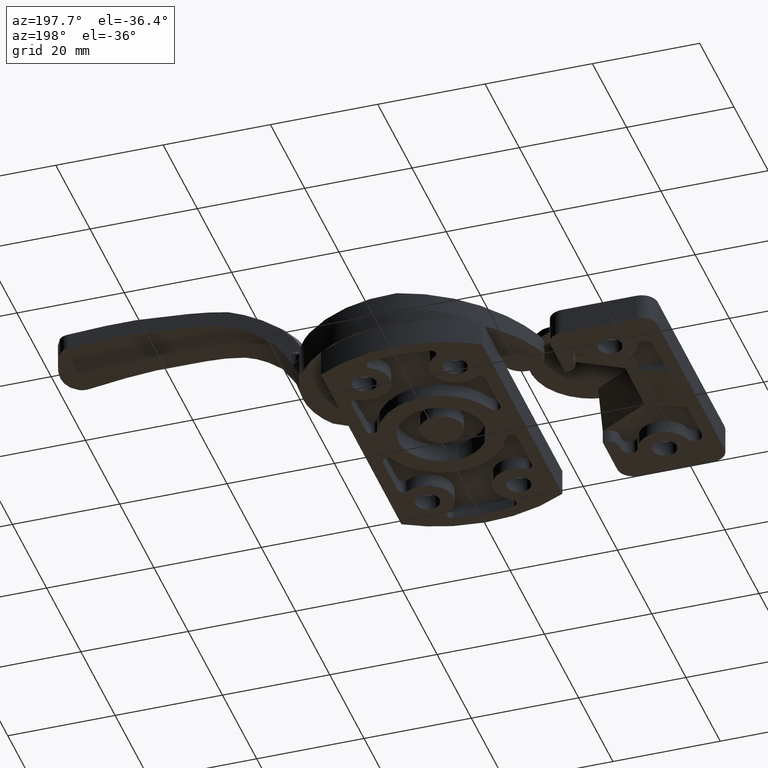
[diagram: clean part render]
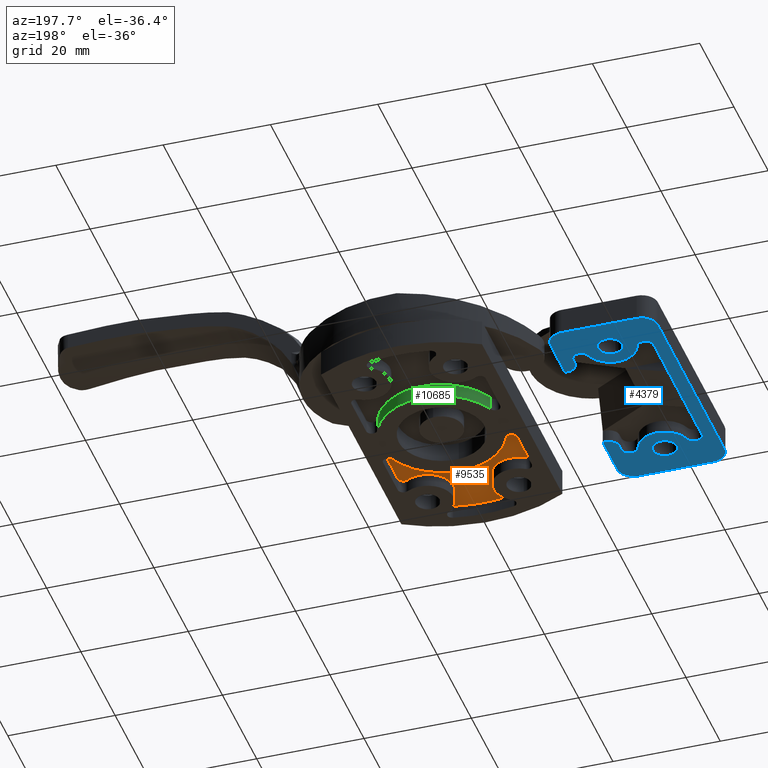
[diagram: same view with three faces highlighted in distinct colors, each labeled with its STEP entity id]
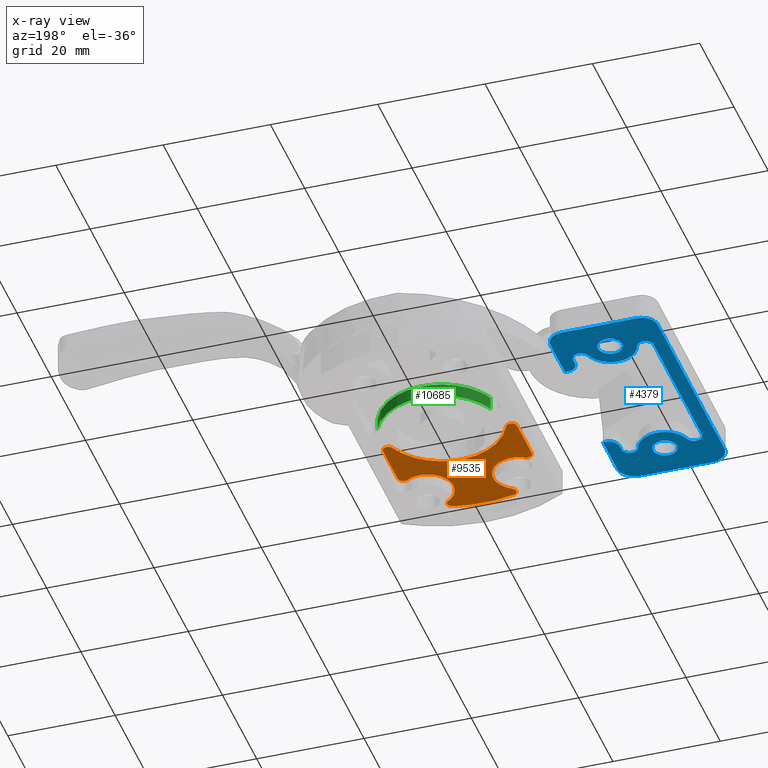
[diagram: x-ray of the same camera — body ghosted, the three highlighted faces saturated]
A machine part, auxiliary view with three faces highlighted in distinct colors.
The next image is the same camera in x-ray (body ghosted, the three faces saturated) — at least one of them is partly hidden behind the body in this view.
Their STEP definitions:

[orange] entity #9535 — the highlighted face is a freeform B-spline surface patch.
#9346=CARTESIAN_POINT('',(13.748749951545360,-2.845168949227364,2.500000000000000));
#9347=CARTESIAN_POINT('',(-13.748750622097409,-2.845168949227364,2.500000000000000));
#9348=CARTESIAN_POINT('',(13.748749951545360,-26.053987644683350,2.500000000000000));
#9349=CARTESIAN_POINT('',(-13.748750622097409,-26.053987644683350,2.500000000000000));
#9350=B_SPLINE_SURFACE_WITH_KNOTS('',1,1,((#9346,#9348),(#9347,#9349)),.UNSPECIFIED.,.F.,.F.,.U.,(2,2),(2,2),(0.0,27.497500573642782),(0.0,23.208818695455982),.UNSPECIFIED.);
#9351=CARTESIAN_POINT('',(12.500000000000201,-4.898979000000001,2.499999999999945));
#9352=VERTEX_POINT('',#9351);
#9353=CARTESIAN_POINT('',(10.580000005162720,-4.507061114601941,2.499999999999945));
#9354=VERTEX_POINT('',#9353);
#9355=CARTESIAN_POINT('',(12.500000000000201,-4.898979000000001,2.499999999999945));
#9356=CARTESIAN_POINT('',(12.500000000000000,-4.082482238427180,2.499999999999945));
#9357=CARTESIAN_POINT('',(11.699999787605631,-3.919183059531933,2.499999999999945));
#9358=CARTESIAN_POINT('',(10.899999575211256,-3.755883880636686,2.499999999999945));
#9359=CARTESIAN_POINT('',(10.580000005162720,-4.507061114601941,2.499999999999945));
#9367=(BOUNDED_CURVE()B_SPLINE_CURVE(2,(#9355,#9356,#9357,#9358,#9359),.UNSPECIFIED.,.F.,.U.)B_SPLINE_CURVE_WITH_KNOTS((3,2,3),(0.0,0.500000000000000,1.0),.UNSPECIFIED.)CURVE()GEOMETRIC_REPRESENTATION_ITEM()RATIONAL_B_SPLINE_CURVE((1.0,0.774596600691492,1.0,0.774596600691492,1.0))REPRESENTATION_ITEM(''));
#9368=EDGE_CURVE('',#9352,#9354,#9367,.T.);
#9369=ORIENTED_EDGE('',*,*,#9368,.F.);
#9370=CARTESIAN_POINT('',(12.500000000000000,-13.536131000000021,2.499999999999945));
#9371=VERTEX_POINT('',#9370);
#9372=CARTESIAN_POINT('',(12.500000000000000,-13.536131000000021,2.499999999999945));
#9373=CARTESIAN_POINT('',(12.500000000000201,-4.898979000000001,2.499999999999945));
#9374=QUASI_UNIFORM_CURVE('',1,(#9372,#9373),.UNSPECIFIED.,.F.,.U.);
#9375=EDGE_CURVE('',#9371,#9352,#9374,.T.);
#9376=ORIENTED_EDGE('',*,*,#9375,.F.);
#9377=CARTESIAN_POINT('',(10.982758626317541,-14.391970106797320,2.499999999999945));
#9378=VERTEX_POINT('',#9377);
#9379=CARTESIAN_POINT('',(10.982758626317541,-14.391970106797320,2.499999999999945));
#9380=CARTESIAN_POINT('',(11.482607168095695,-14.694062797634597,2.499999999999945));
#9381=CARTESIAN_POINT('',(11.991303584047850,-14.407119397340500,2.499999999999945));
#9382=CARTESIAN_POINT('',(12.499999999999998,-14.120175997046399,2.499999999999945));
#9383=CARTESIAN_POINT('',(12.500000000000000,-13.536131000000021,2.499999999999945));
#9391=(BOUNDED_CURVE()B_SPLINE_CURVE(2,(#9379,#9380,#9381,#9382,#9383),.UNSPECIFIED.,.F.,.U.)B_SPLINE_CURVE_WITH_KNOTS((3,2,3),(0.0,0.500000000000000,1.0),.UNSPECIFIED.)CURVE()GEOMETRIC_REPRESENTATION_ITEM()RATIONAL_B_SPLINE_CURVE((1.0,0.863511315515856,1.0,0.863511315515856,1.0))REPRESENTATION_ITEM(''));
#9392=EDGE_CURVE('',#9378,#9371,#9391,.T.);
#9393=ORIENTED_EDGE('',*,*,#9392,.F.);
#9394=CARTESIAN_POINT('',(5.976077199084000,-22.582868402338551,2.499999999999945));
#9395=VERTEX_POINT('',#9394);
#9396=CARTESIAN_POINT('',(10.982758626317541,-14.391970106797320,2.499999999999945));
#9397=CARTESIAN_POINT('',(6.895322150129048,-11.921657466771830,2.499999999999945));
#9398=CARTESIAN_POINT('',(4.404499164812677,-15.996627692695640,2.499999999999945));
#9399=CARTESIAN_POINT('',(1.913676179496306,-20.071597918619453,2.499999999999945));
#9400=CARTESIAN_POINT('',(5.976077199084000,-22.582868402338551,2.499999999999945));
#9408=(BOUNDED_CURVE()B_SPLINE_CURVE(2,(#9396,#9397,#9398,#9399,#9400),.UNSPECIFIED.,.F.,.U.)B_SPLINE_CURVE_WITH_KNOTS((3,2,3),(0.0,0.500000000000000,1.0),.UNSPECIFIED.)CURVE()GEOMETRIC_REPRESENTATION_ITEM()RATIONAL_B_SPLINE_CURVE((1.0,0.708881348128291,1.0,0.708881348128291,1.0))REPRESENTATION_ITEM(''));
#9409=EDGE_CURVE('',#9378,#9395,#9408,.T.);
#9410=ORIENTED_EDGE('',*,*,#9409,.T.);
#9411=CARTESIAN_POINT('',(5.655930628949551,-24.412087409201650,2.499999999999945));
#9412=VERTEX_POINT('',#9411);
#9413=CARTESIAN_POINT('',(5.655930628949551,-24.412087409201650,2.499999999999945));
#9414=CARTESIAN_POINT('',(6.318556643376409,-24.272827381836365,2.499999999999945));
#9415=CARTESIAN_POINT('',(6.435287422634611,-23.605863728110940,2.499999999999945));
#9416=CARTESIAN_POINT('',(6.552018201892813,-22.938900074385526,2.499999999999945));
#9417=CARTESIAN_POINT('',(5.976077199084008,-22.582868402338541,2.499999999999945));
#9425=(BOUNDED_CURVE()B_SPLINE_CURVE(2,(#9413,#9414,#9415,#9416,#9417),.UNSPECIFIED.,.F.,.U.)B_SPLINE_CURVE_WITH_KNOTS((3,2,3),(0.0,0.500000000000000,1.0),.UNSPECIFIED.)CURVE()GEOMETRIC_REPRESENTATION_ITEM()RATIONAL_B_SPLINE_CURVE((1.0,0.828040840483489,1.0,0.828040840483489,1.0))REPRESENTATION_ITEM(''));
#9426=EDGE_CURVE('',#9412,#9395,#9425,.T.);
#9427=ORIENTED_EDGE('',*,*,#9426,.F.);
#9428=CARTESIAN_POINT('',(-5.655930204688779,-24.412087360334599,2.499999999999945));
#9429=VERTEX_POINT('',#9428);
#9430=CARTESIAN_POINT('',(-5.655930204688779,-24.412087360334599,2.499999999999945));
#9431=CARTESIAN_POINT('',(0.000000206995355,-25.600755891966788,2.499999999999945));
#9432=CARTESIAN_POINT('',(5.655930628949549,-24.412087409201661,2.499999999999945));
#9440=(BOUNDED_CURVE()B_SPLINE_CURVE(2,(#9430,#9431,#9432),.UNSPECIFIED.,.F.,.U.)CURVE()GEOMETRIC_REPRESENTATION_ITEM()QUASI_UNIFORM_CURVE()RATIONAL_B_SPLINE_CURVE((1.0,0.978621361849610,1.0))REPRESENTATION_ITEM(''));
#9441=EDGE_CURVE('',#9429,#9412,#9440,.T.);
#9442=ORIENTED_EDGE('',*,*,#9441,.F.);
#9443=CARTESIAN_POINT('',(-5.976077444396740,-22.582868468775001,2.499999999999945));
#9444=VERTEX_POINT('',#9443);
#9445=CARTESIAN_POINT('',(-5.976077444396740,-22.582868468775001,2.499999999999945));
#9446=CARTESIAN_POINT('',(-6.552018372468311,-22.938900373740985,2.499999999999945));
#9447=CARTESIAN_POINT('',(-6.435287366713972,-23.605864047622259,2.499999999999945));
#9448=CARTESIAN_POINT('',(-6.318556360959633,-24.272827721503550,2.499999999999945));
#9449=CARTESIAN_POINT('',(-5.655930204688781,-24.412087360334610,2.499999999999945));
#9457=(BOUNDED_CURVE()B_SPLINE_CURVE(2,(#9445,#9446,#9447,#9448,#9449),.UNSPECIFIED.,.F.,.U.)B_SPLINE_CURVE_WITH_KNOTS((3,2,3),(0.0,0.500000000000000,1.0),.UNSPECIFIED.)CURVE()GEOMETRIC_REPRESENTATION_ITEM()RATIONAL_B_SPLINE_CURVE((1.0,0.828040817840397,1.0,0.828040817840397,1.0))REPRESENTATION_ITEM(''));
#9458=EDGE_CURVE('',#9444,#9429,#9457,.T.);
#9459=ORIENTED_EDGE('',*,*,#9458,.F.);
#9460=CARTESIAN_POINT('',(-10.982758619517220,-14.391970561083919,2.499999999999945));
#9461=VERTEX_POINT('',#9460);
#9462=CARTESIAN_POINT('',(-5.976077444396744,-22.582868468775001,2.499999999999945));
#9463=CARTESIAN_POINT('',(-1.913676059197915,-20.071598129200844,2.499999999999946));
#9464=CARTESIAN_POINT('',(-4.404499161046998,-15.996627698855949,2.499999999999945));
#9465=CARTESIAN_POINT('',(-6.895322262896080,-11.921657268511064,2.499999999999946));
#9466=CARTESIAN_POINT('',(-10.982758619517220,-14.391970561083919,2.499999999999945));
#9474=(BOUNDED_CURVE()B_SPLINE_CURVE(2,(#9462,#9463,#9464,#9465,#9466),.UNSPECIFIED.,.F.,.U.)B_SPLINE_CURVE_WITH_KNOTS((3,2,3),(0.0,0.500000000000000,1.0),.UNSPECIFIED.)CURVE()GEOMETRIC_REPRESENTATION_ITEM()RATIONAL_B_SPLINE_CURVE((1.0,0.708881330761357,1.0,0.708881330761357,1.0))REPRESENTATION_ITEM(''));
#9475=EDGE_CURVE('',#9444,#9461,#9474,.T.);
#9476=ORIENTED_EDGE('',*,*,#9475,.T.);
#9477=CARTESIAN_POINT('',(-12.500000000000000,-13.536131000000021,2.499999999999945));
#9478=VERTEX_POINT('',#9477);
#9479=CARTESIAN_POINT('',(-12.500000000000000,-13.536131000000021,2.499999999999945));
#9480=CARTESIAN_POINT('',(-12.499999999999995,-14.120175920215662,2.499999999999944));
#9481=CARTESIAN_POINT('',(-11.991303683843929,-14.407119341047929,2.499999999999945));
#9482=CARTESIAN_POINT('',(-11.482607367687852,-14.694062761880197,2.499999999999944));
#9483=CARTESIAN_POINT('',(-10.982758619517220,-14.391970561083911,2.499999999999945));
#9491=(BOUNDED_CURVE()B_SPLINE_CURVE(2,(#9479,#9480,#9481,#9482,#9483),.UNSPECIFIED.,.F.,.U.)B_SPLINE_CURVE_WITH_KNOTS((3,2,3),(0.0,0.500000000000000,1.0),.UNSPECIFIED.)CURVE()GEOMETRIC_REPRESENTATION_ITEM()RATIONAL_B_SPLINE_CURVE((1.0,0.863511344408377,1.0,0.863511344408377,1.0))REPRESENTATION_ITEM(''));
#9492=EDGE_CURVE('',#9478,#9461,#9491,.T.);
#9493=ORIENTED_EDGE('',*,*,#9492,.F.);
#9494=CARTESIAN_POINT('',(-12.500000000000000,-4.898979000000001,2.499999999999945));
#9495=VERTEX_POINT('',#9494);
#9496=CARTESIAN_POINT('',(-12.500000000000000,-4.898979000000001,2.499999999999945));
#9497=CARTESIAN_POINT('',(-12.500000000000000,-13.536131000000021,2.499999999999945));
#9498=QUASI_UNIFORM_CURVE('',1,(#9496,#9497),.UNSPECIFIED.,.F.,.U.);
#9499=EDGE_CURVE('',#9495,#9478,#9498,.T.);
#9500=ORIENTED_EDGE('',*,*,#9499,.F.);
#9501=CARTESIAN_POINT('',(-10.580000005162740,-4.507061114601900,2.499999999999945));
#9502=VERTEX_POINT('',#9501);
#9503=CARTESIAN_POINT('',(-10.580000005162740,-4.507061114601900,2.499999999999945));
#9504=CARTESIAN_POINT('',(-10.899999575211300,-3.755883880636677,2.499999999999945));
#9505=CARTESIAN_POINT('',(-11.699999787605650,-3.919183059531938,2.499999999999945));
#9506=CARTESIAN_POINT('',(-12.500000000000000,-4.082482238427200,2.499999999999945));
#9507=CARTESIAN_POINT('',(-12.500000000000000,-4.898979000000001,2.499999999999945));
#9515=(BOUNDED_CURVE()B_SPLINE_CURVE(2,(#9503,#9504,#9505,#9506,#9507),.UNSPECIFIED.,.F.,.U.)B_SPLINE_CURVE_WITH_KNOTS((3,2,3),(0.0,0.500000000000000,1.0),.UNSPECIFIED.)CURVE()GEOMETRIC_REPRESENTATION_ITEM()RATIONAL_B_SPLINE_CURVE((1.0,0.774596600691499,1.0,0.774596600691499,1.0))REPRESENTATION_ITEM(''));
#9516=EDGE_CURVE('',#9502,#9495,#9515,.T.);
#9517=ORIENTED_EDGE('',*,*,#9516,.F.);
#9518=CARTESIAN_POINT('',(-10.580000005162740,-4.507061114601898,2.499999999999945));
#9519=CARTESIAN_POINT('',(-7.601020523897553,-11.500000000000000,2.499999999999945));
#9520=CARTESIAN_POINT('',(0.0,-11.500000000000000,2.499999999999945));
#9521=CARTESIAN_POINT('',(7.601020523897517,-11.500000000000000,2.499999999999945));
#9522=CARTESIAN_POINT('',(10.580000005162720,-4.507061114601942,2.499999999999945));
#9530=(BOUNDED_CURVE()B_SPLINE_CURVE(2,(#9518,#9519,#9520,#9521,#9522),.UNSPECIFIED.,.F.,.U.)B_SPLINE_CURVE_WITH_KNOTS((3,2,3),(0.0,0.500000000000000,1.0),.UNSPECIFIED.)CURVE()GEOMETRIC_REPRESENTATION_ITEM()RATIONAL_B_SPLINE_CURVE((1.0,0.834241678949053,1.0,0.834241678949053,1.0))REPRESENTATION_ITEM(''));
#9531=EDGE_CURVE('',#9502,#9354,#9530,.T.);
#9532=ORIENTED_EDGE('',*,*,#9531,.T.);
#9533=EDGE_LOOP('',(#9369,#9376,#9393,#9410,#9427,#9442,#9459,#9476,#9493,#9500,#9517,#9532));
#9534=FACE_OUTER_BOUND('',#9533,.T.);
#9535=ADVANCED_FACE('',(#9534),#9350,.F.);

[blue] entity #4379 — the highlighted face is a freeform B-spline surface patch.
#1293=CARTESIAN_POINT('',(-36.756726495703290,13.764694314773950,-5.177501E-017));
#1294=VERTEX_POINT('',#1293);
#1300=CARTESIAN_POINT('',(-38.750000000000000,16.0,0.0));
#1301=VERTEX_POINT('',#1300);
#1302=CARTESIAN_POINT('',(-36.756726495703290,13.764694314773948,-5.177501E-017));
#1303=CARTESIAN_POINT('',(-38.749999999999993,13.993623237200172,0.0));
#1304=CARTESIAN_POINT('',(-38.750000000000000,16.0,0.0));
#1312=(BOUNDED_CURVE()B_SPLINE_CURVE(2,(#1302,#1303,#1304),.UNSPECIFIED.,.F.,.U.)B_SPLINE_CURVE_WITH_KNOTS((3,3),(0.269767755882285,0.500000000000000),.UNSPECIFIED.)CURVE()GEOMETRIC_REPRESENTATION_ITEM()RATIONAL_B_SPLINE_CURVE((0.957343736449467,0.730266147782872,1.0))REPRESENTATION_ITEM(''));
#1313=EDGE_CURVE('',#1294,#1301,#1312,.T.);
#1315=CARTESIAN_POINT('',(-36.637359213968828,18.245803296448258,-5.551115E-017));
#1316=VERTEX_POINT('',#1315);
#1317=CARTESIAN_POINT('',(-38.750000000000000,16.0,0.0));
#1318=CARTESIAN_POINT('',(-38.750000000000000,18.116588650508735,0.0));
#1319=CARTESIAN_POINT('',(-36.637359213968836,18.245803296448262,-5.551115E-017));
#1327=(BOUNDED_CURVE()B_SPLINE_CURVE(2,(#1317,#1318,#1319),.UNSPECIFIED.,.F.,.U.)B_SPLINE_CURVE_WITH_KNOTS((3,3),(0.500000000000000,0.739332962239602),.UNSPECIFIED.)CURVE()GEOMETRIC_REPRESENTATION_ITEM()RATIONAL_B_SPLINE_CURVE((1.0,0.719603993285937,0.976072041668131))REPRESENTATION_ITEM(''));
#1328=EDGE_CURVE('',#1301,#1316,#1327,.T.);
#1427=CARTESIAN_POINT('',(-34.249999999999993,16.0,0.0));
#1428=VERTEX_POINT('',#1427);
#1429=CARTESIAN_POINT('',(-36.637359213968828,18.245803296448251,-5.551115E-017));
#1430=CARTESIAN_POINT('',(-36.568743717437258,18.250000000000004,0.0));
#1431=CARTESIAN_POINT('',(-36.500000000000000,18.250000000000000,0.0));
#1432=CARTESIAN_POINT('',(-34.250000000000000,18.250000000000000,0.0));
#1433=CARTESIAN_POINT('',(-34.249999999999993,16.0,0.0));
#1441=(BOUNDED_CURVE()B_SPLINE_CURVE(2,(#1429,#1430,#1431,#1432,#1433),.UNSPECIFIED.,.F.,.U.)B_SPLINE_CURVE_WITH_KNOTS((3,2,3),(0.739332962239603,0.750000000000000,1.0),.UNSPECIFIED.)CURVE()GEOMETRIC_REPRESENTATION_ITEM()RATIONAL_B_SPLINE_CURVE((0.976072041668131,0.987502787900610,1.0,0.707106781186547,1.0))REPRESENTATION_ITEM(''));
#1442=EDGE_CURVE('',#1316,#1428,#1441,.T.);
#1444=CARTESIAN_POINT('',(-34.249999999999993,16.0,0.0));
#1445=CARTESIAN_POINT('',(-34.250000000000000,13.750000000000000,0.0));
#1446=CARTESIAN_POINT('',(-36.500000000000000,13.750000000000000,0.0));
#1447=CARTESIAN_POINT('',(-36.628783778844749,13.750000000000000,0.0));
#1448=CARTESIAN_POINT('',(-36.756726495703290,13.764694314773948,-5.177501E-017));
#1456=(BOUNDED_CURVE()B_SPLINE_CURVE(2,(#1444,#1445,#1446,#1447,#1448),.UNSPECIFIED.,.F.,.U.)B_SPLINE_CURVE_WITH_KNOTS((3,2,3),(0.0,0.250000000000000,0.269767755882285),.UNSPECIFIED.)CURVE()GEOMETRIC_REPRESENTATION_ITEM()RATIONAL_B_SPLINE_CURVE((1.0,0.707106781186547,1.0,0.976840633403676,0.957343736449467))REPRESENTATION_ITEM(''));
#1457=EDGE_CURVE('',#1428,#1294,#1456,.T.);
#1631=CARTESIAN_POINT('',(-38.396840109940747,-14.789835714739549,-4.771552E-017));
#1632=VERTEX_POINT('',#1631);
#1638=CARTESIAN_POINT('',(-34.249999999999993,-16.0,0.0));
#1639=VERTEX_POINT('',#1638);
#1640=CARTESIAN_POINT('',(-34.249999999999993,-16.0,0.0));
#1641=CARTESIAN_POINT('',(-34.250000000000000,-13.750000000000000,0.0));
#1642=CARTESIAN_POINT('',(-36.500000000000000,-13.750000000000000,0.0));
#1643=CARTESIAN_POINT('',(-37.733435726023082,-13.750000000000000,0.0));
#1644=CARTESIAN_POINT('',(-38.396840109940754,-14.789835714739546,-4.771552E-017));
#1652=(BOUNDED_CURVE()B_SPLINE_CURVE(2,(#1640,#1641,#1642,#1643,#1644),.UNSPECIFIED.,.F.,.U.)B_SPLINE_CURVE_WITH_KNOTS((3,2,3),(0.0,0.250000000000000,0.407950112626525),.UNSPECIFIED.)CURVE()GEOMETRIC_REPRESENTATION_ITEM()RATIONAL_B_SPLINE_CURVE((1.0,0.707106781186547,1.0,0.814949932403479,0.863729296954290))REPRESENTATION_ITEM(''));
#1653=EDGE_CURVE('',#1639,#1632,#1652,.T.);
#1655=CARTESIAN_POINT('',(-36.676532965421814,-18.243064000896851,-5.551115E-017));
#1656=VERTEX_POINT('',#1655);
#1657=CARTESIAN_POINT('',(-36.676532965421806,-18.243064000896855,-5.551115E-017));
#1658=CARTESIAN_POINT('',(-36.588402740801584,-18.250000000000004,0.0));
#1659=CARTESIAN_POINT('',(-36.500000000000000,-18.250000000000000,0.0));
#1660=CARTESIAN_POINT('',(-34.250000000000000,-18.250000000000000,0.0));
#1661=CARTESIAN_POINT('',(-34.249999999999993,-16.0,0.0));
#1669=(BOUNDED_CURVE()B_SPLINE_CURVE(2,(#1657,#1658,#1659,#1660,#1661),.UNSPECIFIED.,.F.,.U.)B_SPLINE_CURVE_WITH_KNOTS((3,2,3),(0.736331300627545,0.750000000000000,1.0),.UNSPECIFIED.)CURVE()GEOMETRIC_REPRESENTATION_ITEM()RATIONAL_B_SPLINE_CURVE((0.969723356160917,0.983986122575233,1.0,0.707106781186547,1.0))REPRESENTATION_ITEM(''));
#1670=EDGE_CURVE('',#1656,#1639,#1669,.T.);
#1774=CARTESIAN_POINT('',(-38.750000000000000,-16.0,0.0));
#1775=VERTEX_POINT('',#1774);
#1776=CARTESIAN_POINT('',(-38.750000000000000,-16.0,0.0));
#1777=CARTESIAN_POINT('',(-38.750000000000000,-18.079878606167430,0.0));
#1778=CARTESIAN_POINT('',(-36.676532965421814,-18.243064000896855,-5.551115E-017));
#1786=(BOUNDED_CURVE()B_SPLINE_CURVE(2,(#1776,#1777,#1778),.UNSPECIFIED.,.F.,.U.)B_SPLINE_CURVE_WITH_KNOTS((3,3),(0.500000000000000,0.736331300627546),.UNSPECIFIED.)CURVE()GEOMETRIC_REPRESENTATION_ITEM()RATIONAL_B_SPLINE_CURVE((1.0,0.723120658611314,0.969723356160920))REPRESENTATION_ITEM(''));
#1787=EDGE_CURVE('',#1775,#1656,#1786,.T.);
#1789=CARTESIAN_POINT('',(-38.396840109940754,-14.789835714739546,-4.771552E-017));
#1790=CARTESIAN_POINT('',(-38.750000000000000,-15.343386875388301,0.0));
#1791=CARTESIAN_POINT('',(-38.750000000000000,-16.0,0.0));
#1799=(BOUNDED_CURVE()B_SPLINE_CURVE(2,(#1789,#1790,#1791),.UNSPECIFIED.,.F.,.U.)B_SPLINE_CURVE_WITH_KNOTS((3,3),(0.407950112626524,0.500000000000000),.UNSPECIFIED.)CURVE()GEOMETRIC_REPRESENTATION_ITEM()RATIONAL_B_SPLINE_CURVE((0.863729296954290,0.892156848783068,1.0))REPRESENTATION_ITEM(''));
#1800=EDGE_CURVE('',#1632,#1775,#1799,.T.);
#1939=CARTESIAN_POINT('',(-44.0,-5.609442705712500,0.0));
#1940=VERTEX_POINT('',#1939);
#1968=CARTESIAN_POINT('',(-44.0,5.609442749494390,0.0));
#1969=VERTEX_POINT('',#1968);
#1998=CARTESIAN_POINT('',(-44.0,5.609442749494390,0.0));
#1999=CARTESIAN_POINT('',(-44.0,-5.609442705712500,0.0));
#2000=QUASI_UNIFORM_CURVE('',1,(#1998,#1999),.UNSPECIFIED.,.F.,.U.);
#2001=EDGE_CURVE('',#1969,#1940,#2000,.T.);
#3492=CARTESIAN_POINT('',(-27.0,11.017396673876320,0.0));
#3493=VERTEX_POINT('',#3492);
#3499=CARTESIAN_POINT('',(-26.500000000000000,11.017396673876320,0.0));
#3500=VERTEX_POINT('',#3499);
#3501=CARTESIAN_POINT('',(-27.0,11.017396673876320,0.0));
#3502=CARTESIAN_POINT('',(-26.500000000000000,11.017396673876320,0.0));
#3503=QUASI_UNIFORM_CURVE('',1,(#3501,#3502),.UNSPECIFIED.,.F.,.U.);
#3504=EDGE_CURVE('',#3493,#3500,#3503,.T.);
#3528=CARTESIAN_POINT('',(-29.0,13.017396673876320,0.0));
#3529=VERTEX_POINT('',#3528);
#3530=CARTESIAN_POINT('',(-29.0,13.017396673876320,0.0));
#3531=CARTESIAN_POINT('',(-29.0,11.017396673876320,0.0));
#3532=CARTESIAN_POINT('',(-27.0,11.017396673876320,0.0));
#3540=(BOUNDED_CURVE()B_SPLINE_CURVE(2,(#3530,#3531,#3532),.UNSPECIFIED.,.F.,.U.)CURVE()GEOMETRIC_REPRESENTATION_ITEM()QUASI_UNIFORM_CURVE()RATIONAL_B_SPLINE_CURVE((1.0,0.707106781186548,1.0))REPRESENTATION_ITEM(''));
#3541=EDGE_CURVE('',#3529,#3493,#3540,.T.);
#3572=CARTESIAN_POINT('',(-29.0,14.079063000000000,0.0));
#3573=VERTEX_POINT('',#3572);
#3574=CARTESIAN_POINT('',(-29.0,14.079063000000000,0.0));
#3575=CARTESIAN_POINT('',(-29.0,13.017396673876320,0.0));
#3576=QUASI_UNIFORM_CURVE('',1,(#3574,#3575),.UNSPECIFIED.,.F.,.U.);
#3577=EDGE_CURVE('',#3573,#3529,#3576,.T.);
#3613=CARTESIAN_POINT('',(-31.928571424434850,14.536428758650800,0.0));
#3614=VERTEX_POINT('',#3613);
#3615=CARTESIAN_POINT('',(-29.0,14.079063000000000,0.0));
#3616=CARTESIAN_POINT('',(-28.999999999999989,15.362984945224540,0.0));
#3617=CARTESIAN_POINT('',(-30.268545095964761,15.561098298971670,0.0));
#3618=CARTESIAN_POINT('',(-31.537090191929519,15.759211652718790,0.0));
#3619=CARTESIAN_POINT('',(-31.928571424434850,14.536428758650800,0.0));
#3627=(BOUNDED_CURVE()B_SPLINE_CURVE(2,(#3615,#3616,#3617,#3618,#3619),.UNSPECIFIED.,.F.,.U.)B_SPLINE_CURVE_WITH_KNOTS((3,2,3),(0.0,0.500000000000000,1.0),.UNSPECIFIED.)CURVE()GEOMETRIC_REPRESENTATION_ITEM()RATIONAL_B_SPLINE_CURVE((1.0,0.759704965548083,1.0,0.759704965548083,1.0))REPRESENTATION_ITEM(''));
#3628=EDGE_CURVE('',#3573,#3614,#3627,.T.);
#3674=CARTESIAN_POINT('',(-41.071428570135851,14.536429012921619,0.0));
#3675=VERTEX_POINT('',#3674);
#3676=CARTESIAN_POINT('',(-41.071428570135851,14.536429012921619,0.0));
#3677=CARTESIAN_POINT('',(-40.003250405821404,11.200000087766364,0.0));
#3678=CARTESIAN_POINT('',(-36.500000120253617,11.199999999999999,0.0));
#3679=CARTESIAN_POINT('',(-32.996749834685829,11.199999912233642,0.0));
#3680=CARTESIAN_POINT('',(-31.928571424434850,14.536428758650800,0.0));
#3688=(BOUNDED_CURVE()B_SPLINE_CURVE(2,(#3676,#3677,#3678,#3679,#3680),.UNSPECIFIED.,.F.,.U.)B_SPLINE_CURVE_WITH_KNOTS((3,2,3),(0.0,0.500000000000000,1.0),.UNSPECIFIED.)CURVE()GEOMETRIC_REPRESENTATION_ITEM()RATIONAL_B_SPLINE_CURVE((1.0,0.807747067905929,1.0,0.807747067905929,1.0))REPRESENTATION_ITEM(''));
#3689=EDGE_CURVE('',#3675,#3614,#3688,.T.);
#3735=CARTESIAN_POINT('',(-44.0,14.079063000000000,0.0));
#3736=VERTEX_POINT('',#3735);
#3737=CARTESIAN_POINT('',(-41.071428570135829,14.536429012921630,0.0));
#3738=CARTESIAN_POINT('',(-41.462910045697306,15.759211719786252,0.0));
#3739=CARTESIAN_POINT('',(-42.731455022848657,15.561098280416131,0.0));
#3740=CARTESIAN_POINT('',(-44.000000000000021,15.362984841046007,0.0));
#3741=CARTESIAN_POINT('',(-44.000000000000007,14.079063000000000,0.0));
#3749=(BOUNDED_CURVE()B_SPLINE_CURVE(2,(#3737,#3738,#3739,#3740,#3741),.UNSPECIFIED.,.F.,.U.)B_SPLINE_CURVE_WITH_KNOTS((3,2,3),(0.0,0.500000000000000,1.0),.UNSPECIFIED.)CURVE()GEOMETRIC_REPRESENTATION_ITEM()RATIONAL_B_SPLINE_CURVE((1.0,0.759704991613773,1.0,0.759704991613773,1.0))REPRESENTATION_ITEM(''));
#3750=EDGE_CURVE('',#3675,#3736,#3749,.T.);
#3785=CARTESIAN_POINT('',(-44.0,-14.079063000000000,0.0));
#3786=VERTEX_POINT('',#3785);
#3792=CARTESIAN_POINT('',(-44.0,-14.079063000000000,0.0));
#3793=CARTESIAN_POINT('',(-44.0,-5.609442705712500,0.0));
#3794=QUASI_UNIFORM_CURVE('',1,(#3792,#3793),.UNSPECIFIED.,.F.,.U.);
#3795=EDGE_CURVE('',#3786,#1940,#3794,.T.);
#3818=CARTESIAN_POINT('',(-41.071428575565548,-14.536428758650780,0.0));
#3819=VERTEX_POINT('',#3818);
#3820=CARTESIAN_POINT('',(-44.000000000000007,-14.079063000000000,0.0));
#3821=CARTESIAN_POINT('',(-44.000000000000014,-15.362984945224500,0.0));
#3822=CARTESIAN_POINT('',(-42.731454904035303,-15.561098298971659,0.0));
#3823=CARTESIAN_POINT('',(-41.462909808070592,-15.759211652718824,0.0));
#3824=CARTESIAN_POINT('',(-41.071428575565548,-14.536428758650780,0.0));
#3832=(BOUNDED_CURVE()B_SPLINE_CURVE(2,(#3820,#3821,#3822,#3823,#3824),.UNSPECIFIED.,.F.,.U.)B_SPLINE_CURVE_WITH_KNOTS((3,2,3),(0.0,0.500000000000000,1.0),.UNSPECIFIED.)CURVE()GEOMETRIC_REPRESENTATION_ITEM()RATIONAL_B_SPLINE_CURVE((1.0,0.759704965548094,1.0,0.759704965548094,1.0))REPRESENTATION_ITEM(''));
#3833=EDGE_CURVE('',#3786,#3819,#3832,.T.);
#3863=CARTESIAN_POINT('',(-31.928571429864409,-14.536429012921619,0.0));
#3864=VERTEX_POINT('',#3863);
#3865=CARTESIAN_POINT('',(-31.928571429864409,-14.536429012921619,0.0));
#3866=CARTESIAN_POINT('',(-32.996749594178674,-11.200000087766298,0.0));
#3867=CARTESIAN_POINT('',(-36.499999879746468,-11.199999999999999,0.0));
#3868=CARTESIAN_POINT('',(-40.003250165314256,-11.199999912233709,0.0));
#3869=CARTESIAN_POINT('',(-41.071428575565548,-14.536428758650780,0.0));
#3877=(BOUNDED_CURVE()B_SPLINE_CURVE(2,(#3865,#3866,#3867,#3868,#3869),.UNSPECIFIED.,.F.,.U.)B_SPLINE_CURVE_WITH_KNOTS((3,2,3),(0.0,0.500000000000000,1.0),.UNSPECIFIED.)CURVE()GEOMETRIC_REPRESENTATION_ITEM()RATIONAL_B_SPLINE_CURVE((1.0,0.807747067905928,1.0,0.807747067905928,1.0))REPRESENTATION_ITEM(''));
#3878=EDGE_CURVE('',#3864,#3819,#3877,.T.);
#3908=CARTESIAN_POINT('',(-29.0,-14.079063000000000,0.0));
#3909=VERTEX_POINT('',#3908);
#3910=CARTESIAN_POINT('',(-31.928571429864409,-14.536429012921619,0.0));
#3911=CARTESIAN_POINT('',(-31.537089954302779,-15.759211719786242,0.0));
#3912=CARTESIAN_POINT('',(-30.268544977151389,-15.561098280416140,0.0));
#3913=CARTESIAN_POINT('',(-29.0,-15.362984841046044,0.0));
#3914=CARTESIAN_POINT('',(-29.0,-14.079063000000000,0.0));
#3922=(BOUNDED_CURVE()B_SPLINE_CURVE(2,(#3910,#3911,#3912,#3913,#3914),.UNSPECIFIED.,.F.,.U.)B_SPLINE_CURVE_WITH_KNOTS((3,2,3),(0.0,0.500000000000000,1.0),.UNSPECIFIED.)CURVE()GEOMETRIC_REPRESENTATION_ITEM()RATIONAL_B_SPLINE_CURVE((1.0,0.759704991613765,1.0,0.759704991613765,1.0))REPRESENTATION_ITEM(''));
#3923=EDGE_CURVE('',#3864,#3909,#3922,.T.);
#3940=CARTESIAN_POINT('',(-29.0,-13.017396674964640,0.0));
#3941=VERTEX_POINT('',#3940);
#3942=CARTESIAN_POINT('',(-29.0,-13.017396674964640,0.0));
#3943=CARTESIAN_POINT('',(-29.0,-14.079063000000000,0.0));
#3944=QUASI_UNIFORM_CURVE('',1,(#3942,#3943),.UNSPECIFIED.,.F.,.U.);
#3945=EDGE_CURVE('',#3941,#3909,#3944,.T.);
#3971=CARTESIAN_POINT('',(-27.0,-11.017396674964640,0.0));
#3972=VERTEX_POINT('',#3971);
#3973=CARTESIAN_POINT('',(-27.0,-11.017396674964640,0.0));
#3974=CARTESIAN_POINT('',(-29.0,-11.017396674964640,0.0));
#3975=CARTESIAN_POINT('',(-29.0,-13.017396674964640,0.0));
#3983=(BOUNDED_CURVE()B_SPLINE_CURVE(2,(#3973,#3974,#3975),.UNSPECIFIED.,.F.,.U.)CURVE()GEOMETRIC_REPRESENTATION_ITEM()QUASI_UNIFORM_CURVE()RATIONAL_B_SPLINE_CURVE((1.0,0.707106781186548,1.0))REPRESENTATION_ITEM(''));
#3984=EDGE_CURVE('',#3972,#3941,#3983,.T.);
#4002=CARTESIAN_POINT('',(-26.500000000000000,-11.017396674964640,0.0));
#4003=VERTEX_POINT('',#4002);
#4009=CARTESIAN_POINT('',(-26.500000000000000,-11.017396674964640,0.0));
#4010=CARTESIAN_POINT('',(-27.0,-11.017396674964640,0.0));
#4011=QUASI_UNIFORM_CURVE('',1,(#4009,#4010),.UNSPECIFIED.,.F.,.U.);
#4012=EDGE_CURVE('',#4003,#3972,#4011,.T.);
#4051=CARTESIAN_POINT('',(-26.500000000000000,19.500000000000000,0.0));
#4052=VERTEX_POINT('',#4051);
#4058=CARTESIAN_POINT('',(-29.500000000000000,22.500000000000000,0.0));
#4059=VERTEX_POINT('',#4058);
#4060=CARTESIAN_POINT('',(-26.500000000000000,19.500000000000000,0.0));
#4061=CARTESIAN_POINT('',(-26.500000000000000,22.500000000000000,0.0));
#4062=CARTESIAN_POINT('',(-29.500000000000000,22.500000000000000,0.0));
#4070=(BOUNDED_CURVE()B_SPLINE_CURVE(2,(#4060,#4061,#4062),.UNSPECIFIED.,.F.,.U.)CURVE()GEOMETRIC_REPRESENTATION_ITEM()QUASI_UNIFORM_CURVE()RATIONAL_B_SPLINE_CURVE((1.0,0.707106781186548,1.0))REPRESENTATION_ITEM(''));
#4071=EDGE_CURVE('',#4052,#4059,#4070,.T.);
#4094=CARTESIAN_POINT('',(-43.500000000000000,22.500000000000000,0.0));
#4095=VERTEX_POINT('',#4094);
#4096=CARTESIAN_POINT('',(-43.500000000000000,22.500000000000000,0.0));
#4097=CARTESIAN_POINT('',(-29.500000000000000,22.500000000000000,0.0));
#4098=QUASI_UNIFORM_CURVE('',1,(#4096,#4097),.UNSPECIFIED.,.F.,.U.);
#4099=EDGE_CURVE('',#4095,#4059,#4098,.T.);
#4139=CARTESIAN_POINT('',(-46.500000000000000,19.500000000000000,0.0));
#4140=VERTEX_POINT('',#4139);
#4141=CARTESIAN_POINT('',(-43.500000000000000,22.500000000000000,0.0));
#4142=CARTESIAN_POINT('',(-46.500000000000000,22.500000000000000,0.0));
#4143=CARTESIAN_POINT('',(-46.500000000000000,19.500000000000000,0.0));
#4151=(BOUNDED_CURVE()B_SPLINE_CURVE(2,(#4141,#4142,#4143),.UNSPECIFIED.,.F.,.U.)CURVE()GEOMETRIC_REPRESENTATION_ITEM()QUASI_UNIFORM_CURVE()RATIONAL_B_SPLINE_CURVE((1.0,0.707106781186548,1.0))REPRESENTATION_ITEM(''));
#4152=EDGE_CURVE('',#4095,#4140,#4151,.T.);
#4175=CARTESIAN_POINT('',(-46.500000000000000,-19.500000000000000,0.0));
#4176=VERTEX_POINT('',#4175);
#4177=CARTESIAN_POINT('',(-46.500000000000000,-19.500000000000000,0.0));
#4178=CARTESIAN_POINT('',(-46.500000000000000,19.500000000000000,0.0));
#4179=QUASI_UNIFORM_CURVE('',1,(#4177,#4178),.UNSPECIFIED.,.F.,.U.);
#4180=EDGE_CURVE('',#4176,#4140,#4179,.T.);
#4220=CARTESIAN_POINT('',(-43.500000000000000,-22.500000000000000,0.0));
#4221=VERTEX_POINT('',#4220);
#4222=CARTESIAN_POINT('',(-46.500000000000000,-19.500000000000000,0.0));
#4223=CARTESIAN_POINT('',(-46.500000000000000,-22.500000000000000,0.0));
#4224=CARTESIAN_POINT('',(-43.500000000000000,-22.500000000000000,0.0));
#4232=(BOUNDED_CURVE()B_SPLINE_CURVE(2,(#4222,#4223,#4224),.UNSPECIFIED.,.F.,.U.)CURVE()GEOMETRIC_REPRESENTATION_ITEM()QUASI_UNIFORM_CURVE()RATIONAL_B_SPLINE_CURVE((1.0,0.707106781186548,1.0))REPRESENTATION_ITEM(''));
#4233=EDGE_CURVE('',#4176,#4221,#4232,.T.);
#4256=CARTESIAN_POINT('',(-29.500000000000000,-22.500000000000000,0.0));
#4257=VERTEX_POINT('',#4256);
#4258=CARTESIAN_POINT('',(-29.500000000000000,-22.500000000000000,0.0));
#4259=CARTESIAN_POINT('',(-43.500000000000000,-22.500000000000000,0.0));
#4260=QUASI_UNIFORM_CURVE('',1,(#4258,#4259),.UNSPECIFIED.,.F.,.U.);
#4261=EDGE_CURVE('',#4257,#4221,#4260,.T.);
#4301=CARTESIAN_POINT('',(-26.500000000000000,-19.500000000000000,0.0));
#4302=VERTEX_POINT('',#4301);
#4303=CARTESIAN_POINT('',(-29.500000000000000,-22.500000000000000,0.0));
#4304=CARTESIAN_POINT('',(-26.500000000000000,-22.500000000000000,0.0));
#4305=CARTESIAN_POINT('',(-26.500000000000000,-19.500000000000000,0.0));
#4313=(BOUNDED_CURVE()B_SPLINE_CURVE(2,(#4303,#4304,#4305),.UNSPECIFIED.,.F.,.U.)CURVE()GEOMETRIC_REPRESENTATION_ITEM()QUASI_UNIFORM_CURVE()RATIONAL_B_SPLINE_CURVE((1.0,0.707106781186548,1.0))REPRESENTATION_ITEM(''));
#4314=EDGE_CURVE('',#4257,#4302,#4313,.T.);
#4324=CARTESIAN_POINT('',(-25.501000038763880,24.747749912781270,0.0));
#4325=CARTESIAN_POINT('',(-47.499000497677933,24.747749912781270,0.0));
#4326=CARTESIAN_POINT('',(-25.501000038763880,-24.747751119775330,0.0));
#4327=CARTESIAN_POINT('',(-47.499000497677933,-24.747751119775330,0.0));
#4328=B_SPLINE_SURFACE_WITH_KNOTS('',1,1,((#4324,#4326),(#4325,#4327)),.UNSPECIFIED.,.F.,.F.,.U.,(2,2),(2,2),(0.0,21.998000458914049),(0.0,49.495501032556589),.UNSPECIFIED.);
#4329=CARTESIAN_POINT('',(-26.500000000000000,-11.017396674964640,0.0));
#4330=CARTESIAN_POINT('',(-26.500000000000000,-19.500000000000000,0.0));
#4331=QUASI_UNIFORM_CURVE('',1,(#4329,#4330),.UNSPECIFIED.,.F.,.U.);
#4332=EDGE_CURVE('',#4003,#4302,#4331,.T.);
#4333=ORIENTED_EDGE('',*,*,#4332,.T.);
#4334=ORIENTED_EDGE('',*,*,#4314,.F.);
#4335=ORIENTED_EDGE('',*,*,#4261,.T.);
#4336=ORIENTED_EDGE('',*,*,#4233,.F.);
#4337=ORIENTED_EDGE('',*,*,#4180,.T.);
#4338=ORIENTED_EDGE('',*,*,#4152,.F.);
#4339=ORIENTED_EDGE('',*,*,#4099,.T.);
#4340=ORIENTED_EDGE('',*,*,#4071,.F.);
#4341=CARTESIAN_POINT('',(-26.500000000000000,19.500000000000000,0.0));
#4342=CARTESIAN_POINT('',(-26.500000000000000,11.017396673876320,0.0));
#4343=QUASI_UNIFORM_CURVE('',1,(#4341,#4342),.UNSPECIFIED.,.F.,.U.);
#4344=EDGE_CURVE('',#4052,#3500,#4343,.T.);
#4345=ORIENTED_EDGE('',*,*,#4344,.T.);
#4346=ORIENTED_EDGE('',*,*,#3504,.F.);
#4347=ORIENTED_EDGE('',*,*,#3541,.F.);
#4348=ORIENTED_EDGE('',*,*,#3577,.F.);
#4349=ORIENTED_EDGE('',*,*,#3628,.T.);
#4350=ORIENTED_EDGE('',*,*,#3689,.F.);
#4351=ORIENTED_EDGE('',*,*,#3750,.T.);
#4352=CARTESIAN_POINT('',(-44.0,5.609442749494390,0.0));
#4353=CARTESIAN_POINT('',(-44.0,14.079063000000000,0.0));
#4354=QUASI_UNIFORM_CURVE('',1,(#4352,#4353),.UNSPECIFIED.,.F.,.U.);
#4355=EDGE_CURVE('',#1969,#3736,#4354,.T.);
#4356=ORIENTED_EDGE('',*,*,#4355,.F.);
#4357=ORIENTED_EDGE('',*,*,#2001,.T.);
#4358=ORIENTED_EDGE('',*,*,#3795,.F.);
#4359=ORIENTED_EDGE('',*,*,#3833,.T.);
#4360=ORIENTED_EDGE('',*,*,#3878,.F.);
#4361=ORIENTED_EDGE('',*,*,#3923,.T.);
#4362=ORIENTED_EDGE('',*,*,#3945,.F.);
#4363=ORIENTED_EDGE('',*,*,#3984,.F.);
#4364=ORIENTED_EDGE('',*,*,#4012,.F.);
#4365=EDGE_LOOP('',(#4333,#4334,#4335,#4336,#4337,#4338,#4339,#4340,#4345,#4346,#4347,#4348,#4349,#4350,#4351,#4356,#4357,#4358,#4359,#4360,#4361,#4362,#4363,#4364));
#4366=FACE_OUTER_BOUND('',#4365,.T.);
#4367=ORIENTED_EDGE('',*,*,#1787,.T.);
#4368=ORIENTED_EDGE('',*,*,#1670,.T.);
#4369=ORIENTED_EDGE('',*,*,#1653,.T.);
#4370=ORIENTED_EDGE('',*,*,#1800,.T.);
#4371=EDGE_LOOP('',(#4367,#4368,#4369,#4370));
#4372=FACE_BOUND('',#4371,.T.);
#4373=ORIENTED_EDGE('',*,*,#1328,.F.);
#4374=ORIENTED_EDGE('',*,*,#1313,.F.);
#4375=ORIENTED_EDGE('',*,*,#1457,.F.);
#4376=ORIENTED_EDGE('',*,*,#1442,.F.);
#4377=EDGE_LOOP('',(#4373,#4374,#4375,#4376));
#4378=FACE_BOUND('',#4377,.T.);
#4379=ADVANCED_FACE('',(#4366,#4372,#4378),#4328,.F.);

[green] entity #10685 — the highlighted face is a freeform B-spline surface patch.
#10021=CARTESIAN_POINT('',(10.579999999551060,4.507060642208520,2.499999999999945));
#10022=VERTEX_POINT('',#10021);
#10023=CARTESIAN_POINT('',(-10.579999999551060,4.507060642208531,2.499999999999945));
#10024=VERTEX_POINT('',#10023);
#10025=CARTESIAN_POINT('',(10.579999999551060,4.507060642208520,2.499999999999945));
#10026=CARTESIAN_POINT('',(7.601020834549830,11.500000000000000,2.499999999999945));
#10027=CARTESIAN_POINT('',(0.0,11.500000000000000,2.499999999999945));
#10028=CARTESIAN_POINT('',(-7.601020834549817,11.500000000000000,2.499999999999945));
#10029=CARTESIAN_POINT('',(-10.579999999551060,4.507060642208531,2.499999999999945));
#10037=(BOUNDED_CURVE()B_SPLINE_CURVE(2,(#10025,#10026,#10027,#10028,#10029),.UNSPECIFIED.,.F.,.U.)B_SPLINE_CURVE_WITH_KNOTS((3,2,3),(0.0,0.500000000000000,1.0),.UNSPECIFIED.)CURVE()GEOMETRIC_REPRESENTATION_ITEM()RATIONAL_B_SPLINE_CURVE((1.0,0.834241668582690,1.0,0.834241668582690,1.0))REPRESENTATION_ITEM(''));
#10038=EDGE_CURVE('',#10022,#10024,#10037,.T.);
#10224=CARTESIAN_POINT('',(10.579999999551060,4.507060642208520,0.0));
#10225=VERTEX_POINT('',#10224);
#10243=CARTESIAN_POINT('',(10.579999999551060,4.507060642208520,2.499999999999945));
#10244=CARTESIAN_POINT('',(10.579999999551060,4.507060642208520,0.0));
#10245=QUASI_UNIFORM_CURVE('',1,(#10243,#10244),.UNSPECIFIED.,.F.,.U.);
#10246=EDGE_CURVE('',#10022,#10225,#10245,.T.);
#10620=CARTESIAN_POINT('',(-10.579999999551060,4.507060642208531,0.0));
#10621=VERTEX_POINT('',#10620);
#10639=CARTESIAN_POINT('',(-10.579999999551060,4.507060642208531,2.499999999999945));
#10640=CARTESIAN_POINT('',(-10.579999999551060,4.507060642208531,0.0));
#10641=QUASI_UNIFORM_CURVE('',1,(#10639,#10640),.UNSPECIFIED.,.F.,.U.);
#10642=EDGE_CURVE('',#10024,#10621,#10641,.T.);
#10647=CARTESIAN_POINT('',(10.618928345979930,4.414562354633121,2.562499999999944));
#10648=CARTESIAN_POINT('',(10.618928345979930,4.414562354633121,-0.064062499999999));
#10649=CARTESIAN_POINT('',(7.613159826072520,11.644733314615289,2.562499999999944));
#10650=CARTESIAN_POINT('',(7.613159826072520,11.644733314615289,-0.064062499999999));
#10651=CARTESIAN_POINT('',(-0.215536104403689,11.497980004665971,2.562499999999944));
#10652=CARTESIAN_POINT('',(-0.215536104403689,11.497980004665971,-0.064062499999999));
#10653=CARTESIAN_POINT('',(-8.044232034879899,11.351226694716647,2.562499999999944));
#10654=CARTESIAN_POINT('',(-8.044232034879899,11.351226694716647,-0.064062499999999));
#10655=CARTESIAN_POINT('',(-10.776916839314589,4.013485198489923,2.562499999999944));
#10656=CARTESIAN_POINT('',(-10.776916839314589,4.013485198489923,-0.064062499999999));
#10664=(BOUNDED_SURFACE()B_SPLINE_SURFACE(1,2,((#10647,#10649,#10651,#10653,#10655),(#10648,#10650,#10652,#10654,#10656)),.UNSPECIFIED.,.F.,.F.,.U.)B_SPLINE_SURFACE_WITH_KNOTS((2,2),(3,2,3),(0.0,2.626562499999943),(0.0,14.173421637969810,28.346843275939619),.UNSPECIFIED.)GEOMETRIC_REPRESENTATION_ITEM()RATIONAL_B_SPLINE_SURFACE(((1.0,0.826589749127189,1.0,0.826589749127189,1.0),(1.0,0.826589749127189,1.0,0.826589749127189,1.0)))REPRESENTATION_ITEM('')SURFACE());
#10665=CARTESIAN_POINT('',(10.579999999551060,4.507060642208520,0.0));
#10666=CARTESIAN_POINT('',(7.601020834549830,11.500000000000000,0.0));
#10667=CARTESIAN_POINT('',(0.0,11.500000000000000,0.0));
#10668=CARTESIAN_POINT('',(-7.601020834549817,11.500000000000000,0.0));
#10669=CARTESIAN_POINT('',(-10.579999999551060,4.507060642208531,0.0));
#10677=(BOUNDED_CURVE()B_SPLINE_CURVE(2,(#10665,#10666,#10667,#10668,#10669),.UNSPECIFIED.,.F.,.U.)B_SPLINE_CURVE_WITH_KNOTS((3,2,3),(0.0,0.500000000000000,1.0),.UNSPECIFIED.)CURVE()GEOMETRIC_REPRESENTATION_ITEM()RATIONAL_B_SPLINE_CURVE((1.0,0.834241668582690,1.0,0.834241668582690,1.0))REPRESENTATION_ITEM(''));
#10678=EDGE_CURVE('',#10225,#10621,#10677,.T.);
#10679=ORIENTED_EDGE('',*,*,#10678,.T.);
#10680=ORIENTED_EDGE('',*,*,#10642,.F.);
#10681=ORIENTED_EDGE('',*,*,#10038,.F.);
#10682=ORIENTED_EDGE('',*,*,#10246,.T.);
#10683=EDGE_LOOP('',(#10679,#10680,#10681,#10682));
#10684=FACE_OUTER_BOUND('',#10683,.T.);
#10685=ADVANCED_FACE('',(#10684),#10664,.T.);